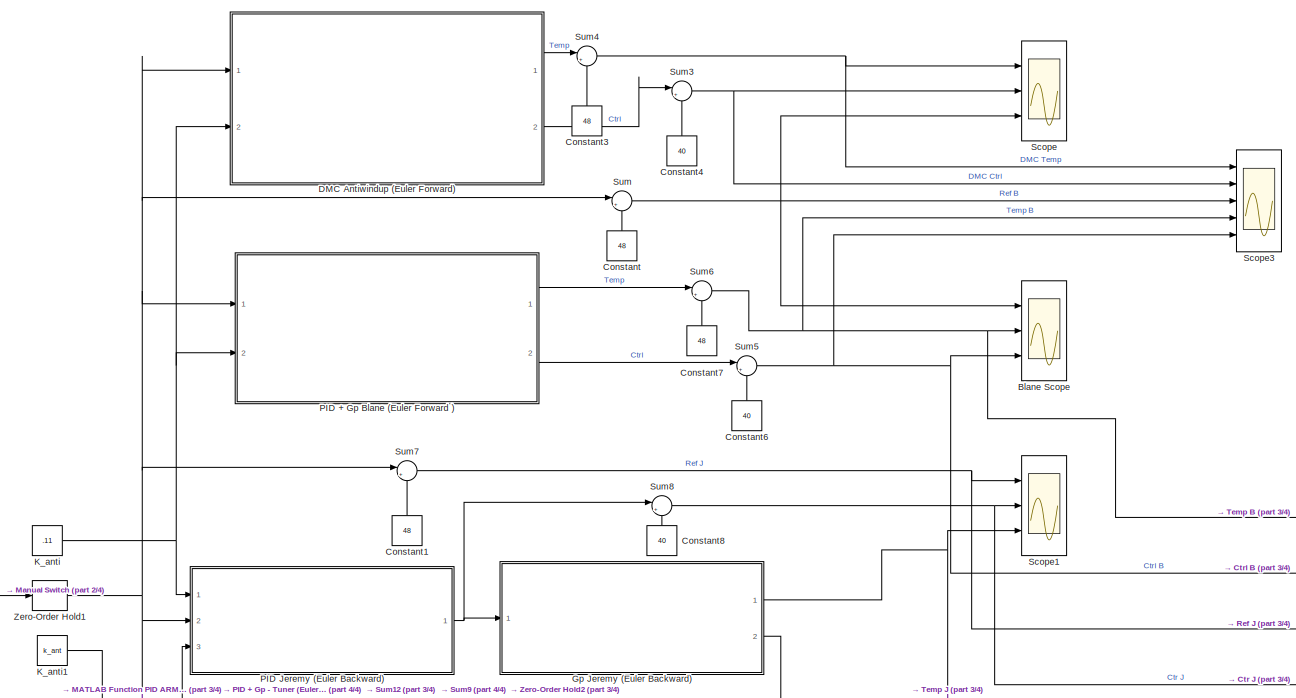
[diagram: root canvas - part 1/4, top center region]
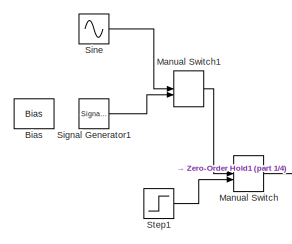
[diagram: root canvas - part 2/4, middle left region]
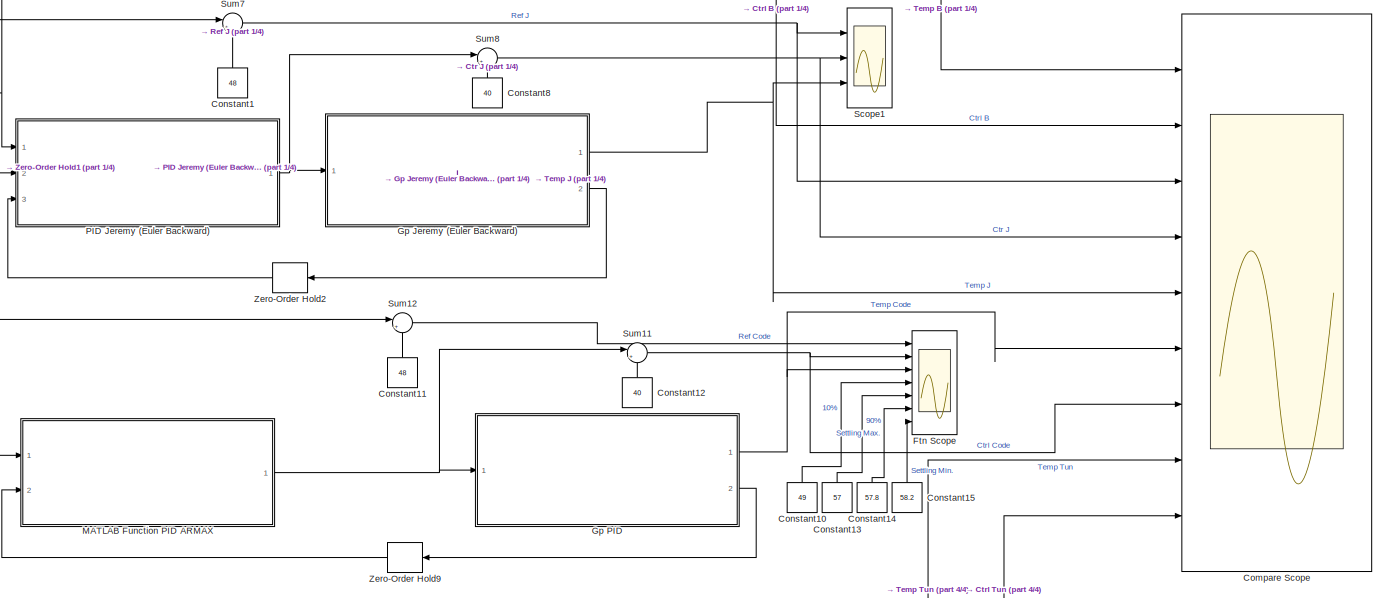
[diagram: root canvas - part 3/4, full width, middle band]
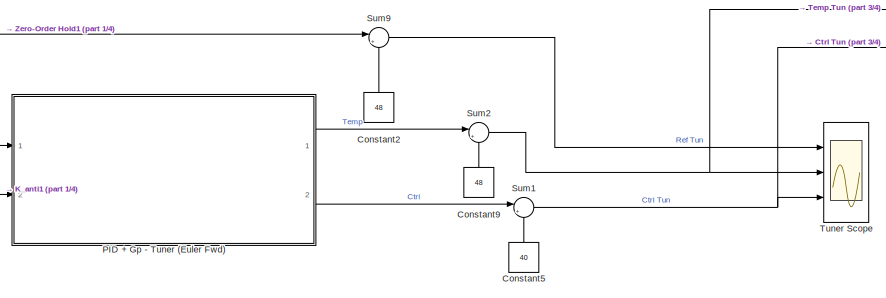
[diagram: root canvas - part 4/4, bottom center region]
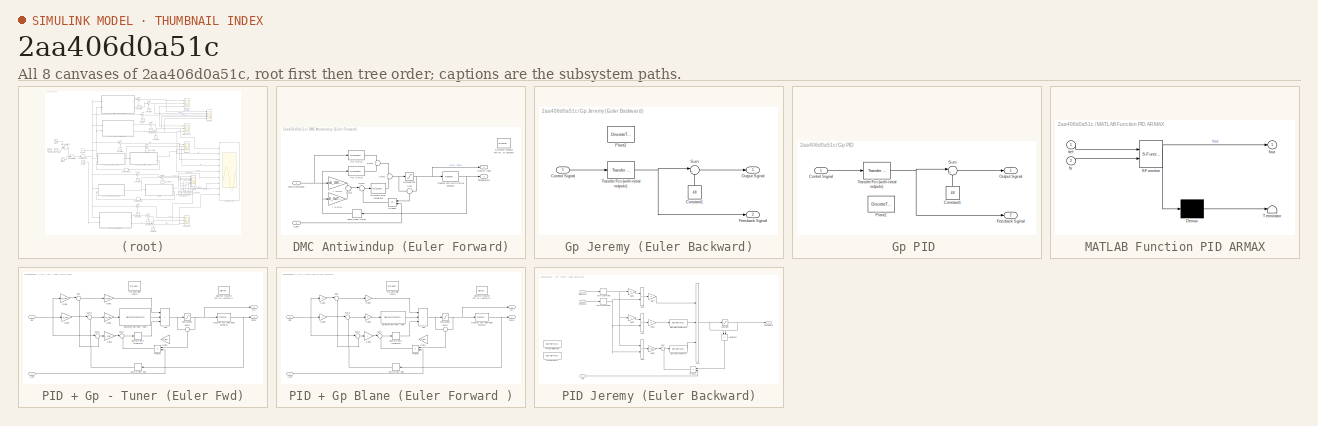
[diagram: thumbnail index - all 8 canvases of the model, root first then tree order]
MODEL slx_2aa406d0a51c
KIND model
CONFIG AbsTol = auto
CONFIG EnableMultiTasking = off
CONFIG FixedStep = auto
CONFIG MaxStep = auto
CONFIG MinStep = auto
CONFIG RelTol = 1e-3
CONFIG SampleTimeConstraint = Unconstrained
CONFIG SolverName = VariableStepAuto
CONFIG StartTime = 0.0
CONFIG StopTime = 3600
BLOCK [Bias] Bias
  Bias = 48
  Commented = on
  SaturateOnIntegerOverflow = off
BLOCK [Scope] Blane Scope
  Floating = off
  NumInputPorts = 3
  Ports = [3]
  ScopeSpecificationString = Simulink.scopes.TimeScopeBlockCfg('CurrentConfiguration', extmgr.ConfigurationSet(extmgr.Configuration('Core','General UI',true),extmgr.Configuration('Core','Source UI',true),extmgr.Configuration('Sources','WiredSimulink',true,'DataLoggingVariableName','ScopeData1'),extmgr.Configuration('Visuals','Time Domain',true,'SerializedDisplays',{struct('MinYLimReal','-12.5','MaxYLimReal','112.5','YLabelRea...<+1437ch>
BLOCK [Scope] Compare Scope
  Floating = off
  NumInputPorts = 9
  Ports = [9]
  ScopeSpecificationString = Simulink.scopes.TimeScopeBlockCfg('CurrentConfiguration', extmgr.ConfigurationSet(extmgr.Configuration('Core','General UI',true),extmgr.Configuration('Core','Source UI',true),extmgr.Configuration('Sources','WiredSimulink',true,'DataLoggingVariableName','ScopeData2'),extmgr.Configuration('Visuals','Time Domain',true,'SerializedDisplays',{struct('MinYLimReal','-12.5','MaxYLimReal','112.5','YLabelRea...<+1736ch>
BLOCK [Constant] Constant
  NameLocation = right
  Value = 48
BLOCK [Constant] Constant1
  NameLocation = right
  Value = 48
BLOCK [Constant] Constant10
  NameLocation = right
  Value = 49
BLOCK [Constant] Constant11
  NameLocation = right
  Value = 48
BLOCK [Constant] Constant12
  NameLocation = right
  Value = 40
BLOCK [Constant] Constant13
  NameLocation = right
  Value = 57
BLOCK [Constant] Constant14
  NameLocation = right
  Value = 57.8
BLOCK [Constant] Constant15
  NameLocation = right
  Value = 58.2
BLOCK [Constant] Constant2
  NameLocation = right
  Value = 48
BLOCK [Constant] Constant3
  NameLocation = right
  Value = 48
BLOCK [Constant] Constant4
  NameLocation = right
  Value = 40
BLOCK [Constant] Constant5
  NameLocation = right
  Value = 40
BLOCK [Constant] Constant6
  NameLocation = right
  Value = 40
BLOCK [Constant] Constant7
  NameLocation = right
  Value = 48
BLOCK [Constant] Constant8
  NameLocation = right
  Value = 40
BLOCK [Constant] Constant9
  NameLocation = right
  Value = 48
BLOCK [SubSystem] DMC Antiwindup (Euler Forward)
  Commented = on
  Ports = [2, 2]
  RequestExecContextInheritance = off
BLOCK [Outport] DMC Antiwindup (Euler Forward)/Control Input 
  Port = 2
BLOCK [Reference] DMC Antiwindup (Euler Forward)/Discrete Transfer Fcn (with initial outputs)  REF=simulink_extras/Additional
Discrete/Discrete
Transfer Fcn
(with initial outputs)
  Ports = [1, 1]
  SourceBlock = simulink_extras/Additional\nDiscrete/Discrete\nTransfer Fcn\n(with initial outputs)
  SourceProductBaseCode = SL
  SourceType = Discrete Transfer Function with Initial Outputs
BLOCK [DiscreteIntegrator] DMC Antiwindup (Euler Forward)/Discrete-Time Integrator
  ICPrevOutput = DiscIntNeverNeededParam
  ICPrevScaledInput = DiscIntNeverNeededParam
  InitialConditionSetting = Auto
  Ports = [1, 1]
  SampleTime = Ts3
BLOCK [Gain] DMC Antiwindup (Euler Forward)/I S//R(z)
  Gain = c0_Gc/Ts3
BLOCK [Gain] DMC Antiwindup (Euler Forward)/I T//R(z)
  Gain = c0_Gff/Ts3
BLOCK [DiscreteTransferFcn] DMC Antiwindup (Euler Forward)/PD S//R(z)
  Denominator = PD_den
  InputPortMap = u0
  Numerator = PD_SR_num
  Ports = [1, 1]
  SampleTime = Ts3
BLOCK [DiscreteTransferFcn] DMC Antiwindup (Euler Forward)/PD T//R(z)
  Denominator = PD_den
  InputPortMap = u0
  Numerator = PD_TR_num
  Ports = [1, 1]
  SampleTime = Ts3
BLOCK [Product] DMC Antiwindup (Euler Forward)/Product
  Ports = [2, 1]
BLOCK [Saturate] DMC Antiwindup (Euler Forward)/Saturation1
  LowerLimit = -40
  UpperLimit = 60
BLOCK [Sum] DMC Antiwindup (Euler Forward)/Sum
  Inputs = -+
  NameLocation = left
  Ports = [2, 1]
BLOCK [Sum] DMC Antiwindup (Euler Forward)/Sum1
  Ports = [2, 1]
BLOCK [Sum] DMC Antiwindup (Euler Forward)/Sum2
  Inputs = |++
  Ports = [2, 1]
BLOCK [Sum] DMC Antiwindup (Euler Forward)/Sum3
  Inputs = +-
  Ports = [2, 1]
BLOCK [Sum] DMC Antiwindup (Euler Forward)/Sum4
  Inputs = +-
  Ports = [2, 1]
BLOCK [Inport] DMC Antiwindup (Euler Forward)/Temp Reference
BLOCK [Outport] DMC Antiwindup (Euler Forward)/Temperature 
BLOCK [Reference] DMC Antiwindup (Euler Forward)/Transfer Fcn (with initial outputs)  REF=simulink_extras/Additional
Linear/Transfer Fcn
(with initial outputs)
  Ports = [1, 1]
  SourceBlock = simulink_extras/Additional\nLinear/Transfer Fcn\n(with initial outputs)
  SourceProductBaseCode = SL
  SourceType = Transfer Function with Initial Outputs
BLOCK [ZeroOrderHold] DMC Antiwindup (Euler Forward)/Zero-Order Hold1
  SampleTime = Ts3
BLOCK [Inport] DMC Antiwindup (Euler Forward)/k_anti
  Port = 2
BLOCK [Scope] Ftn Scope
  Floating = off
  NumInputPorts = 7
  Ports = [7]
  ScopeSpecificationString = Simulink.scopes.TimeScopeBlockCfg('CurrentConfiguration', extmgr.ConfigurationSet(extmgr.Configuration('Core','General UI',true),extmgr.Configuration('Core','Source UI',true),extmgr.Configuration('Sources','WiredSimulink',true,'DataLoggingVariableName','ScopeData3'),extmgr.Configuration('Visuals','Time Domain',true,'SerializedDisplays',{struct('MinYLimReal','-12.5','MaxYLimReal','112.5','YLabelRea...<+1725ch>
BLOCK [SubSystem] Gp Jeremy (Euler Backward)
  Commented = on
  Ports = [1, 2]
  RequestExecContextInheritance = off
BLOCK [Constant] Gp Jeremy (Euler Backward)/Constant1
  NameLocation = right
  Value = 48
BLOCK [Inport] Gp Jeremy (Euler Backward)/Control Signal
  NameLocation = left
BLOCK [Outport] Gp Jeremy (Euler Backward)/Feecback Sginal
  NameLocation = right
  Port = 2
BLOCK [Outport] Gp Jeremy (Euler Backward)/Output Sginal
  NameLocation = right
BLOCK [DiscreteTransferFcn] Gp Jeremy (Euler Backward)/Plant2
  Commented = on
  Denominator = A
  InputPortMap = u0
  Numerator = B
  Ports = [1, 1]
  SampleTime = 0.4
BLOCK [Sum] Gp Jeremy (Euler Backward)/Sum
  Inputs = |++
  Ports = [2, 1]
BLOCK [Reference] Gp Jeremy (Euler Backward)/Transfer Fcn (with initial outputs)  REF=simulink_extras/Additional
Linear/Transfer Fcn
(with initial outputs)
  Ports = [1, 1]
  SourceBlock = simulink_extras/Additional\nLinear/Transfer Fcn\n(with initial outputs)
  SourceProductBaseCode = SL
  SourceType = Transfer Function with Initial Outputs
BLOCK [SubSystem] Gp PID 
  Ports = [1, 2]
  RequestExecContextInheritance = off
BLOCK [Constant] Gp PID /Constant1
  NameLocation = right
  Value = 48
BLOCK [Inport] Gp PID /Control Signal
  NameLocation = left
BLOCK [Outport] Gp PID /Feecback Sginal
  NameLocation = right
  Port = 2
BLOCK [Outport] Gp PID /Output Sginal
  NameLocation = right
BLOCK [DiscreteTransferFcn] Gp PID /Plant2
  Commented = on
  Denominator = A
  InputPortMap = u0
  Numerator = B
  Ports = [1, 1]
  SampleTime = 0.4
BLOCK [Sum] Gp PID /Sum
  Inputs = |++
  Ports = [2, 1]
BLOCK [Reference] Gp PID /Transfer Fcn (with initial outputs)  REF=simulink_extras/Additional
Linear/Transfer Fcn
(with initial outputs)
  Ports = [1, 1]
  SourceBlock = simulink_extras/Additional\nLinear/Transfer Fcn\n(with initial outputs)
  SourceProductBaseCode = SL
  SourceType = Transfer Function with Initial Outputs
BLOCK [Constant] K_anti
  Value = .11
BLOCK [Constant] K_anti1
  Value = k_ant
  VectorParams1D = off
BLOCK [SubSystem] MATLAB Function PID ARMAX
  ErrorFcn = Stateflow.Translate.translate
  PermitHierarchicalResolution = ExplicitOnly
  Ports = [2, 1]
  RequestExecContextInheritance = off
  SFBlockType = MATLAB Function
  TreatAsAtomicUnit = on
BLOCK [Demux] MATLAB Function PID ARMAX/ Demux 
  Outputs = 1
  Ports = [1, 1]
BLOCK [S-Function] MATLAB Function PID ARMAX/ SFunction 
  EnableBusSupport = on
  FunctionName = sf_sfun
  PortCounts = [2 2]
  Ports = [2, 2]
  SFcnIsStateOwnerBlock = off
  SFunctionDeploymentMode = off
  Tag = Stateflow S-Function 3
BLOCK [Terminator] MATLAB Function PID ARMAX/ Terminator 
BLOCK [Outport] MATLAB Function PID ARMAX/fout
BLOCK [Inport] MATLAB Function PID ARMAX/fref
BLOCK [Inport] MATLAB Function PID ARMAX/fy
  Port = 2
BLOCK [ManualSwitch] Manual Switch
  CurrentSetting = 0
BLOCK [ManualSwitch] Manual Switch1
  CurrentSetting = 0
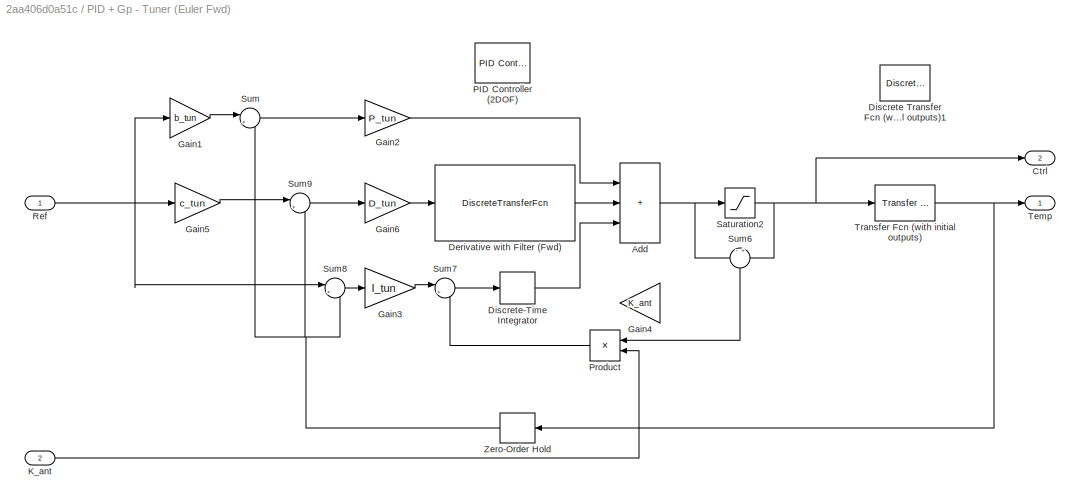
BLOCK [SubSystem] PID + Gp - Tuner (Euler Fwd)
  Ports = [2, 2]
  RequestExecContextInheritance = off
BLOCK [Sum] PID + Gp - Tuner (Euler Fwd)/Add
  IconShape = rectangular
  Inputs = +++
  Ports = [3, 1]
BLOCK [Outport] PID + Gp - Tuner (Euler Fwd)/Ctrl
  Port = 2
BLOCK [DiscreteTransferFcn] PID + Gp - Tuner (Euler Fwd)/Derivative with Filter (Fwd)
  Denominator = [1, (N_tun*Ts3 - 1)]
  InputPortMap = u0
  Numerator = [N_tun , -N_tun]
  Ports = [1, 1]
  SampleTime = Ts3
BLOCK [Reference] PID + Gp - Tuner (Euler Fwd)/Discrete Transfer Fcn (with initial outputs)1  REF=simulink_extras/Additional
Discrete/Discrete
Transfer Fcn
(with initial outputs)
  Commented = on
  Ports = [1, 1]
  SourceBlock = simulink_extras/Additional\nDiscrete/Discrete\nTransfer Fcn\n(with initial outputs)
  SourceProductBaseCode = SL
  SourceType = Discrete Transfer Function with Initial Outputs
BLOCK [DiscreteIntegrator] PID + Gp - Tuner (Euler Fwd)/Discrete-Time Integrator
  ICPrevOutput = DiscIntNeverNeededParam
  ICPrevScaledInput = DiscIntNeverNeededParam
  InitialConditionSetting = Auto
  Ports = [1, 1]
  SampleTime = Ts3
BLOCK [Gain] PID + Gp - Tuner (Euler Fwd)/Gain1
  Gain = b_tun
BLOCK [Gain] PID + Gp - Tuner (Euler Fwd)/Gain2
  Gain = P_tun
BLOCK [Gain] PID + Gp - Tuner (Euler Fwd)/Gain3
  Gain = I_tun
BLOCK [Gain] PID + Gp - Tuner (Euler Fwd)/Gain4
  Commented = on
  Gain = K_ant
BLOCK [Gain] PID + Gp - Tuner (Euler Fwd)/Gain5
  Gain = c_tun
BLOCK [Gain] PID + Gp - Tuner (Euler Fwd)/Gain6
  Gain = D_tun
BLOCK [Inport] PID + Gp - Tuner (Euler Fwd)/K_ant
  Port = 2
BLOCK [Reference] PID + Gp - Tuner (Euler Fwd)/PID Controller (2DOF)  REF=pid_lib/PID Controller (2DOF)
  Commented = on
  Ports = [2, 1]
  SourceBlock = pid_lib/PID Controller (2DOF)
  SourceProductBaseCode = SL
  SourceType = PID 2dof
BLOCK [Product] PID + Gp - Tuner (Euler Fwd)/Product
  Ports = [2, 1]
BLOCK [Inport] PID + Gp - Tuner (Euler Fwd)/Ref
BLOCK [Saturate] PID + Gp - Tuner (Euler Fwd)/Saturation2
  LowerLimit = -40
  UpperLimit = 60
BLOCK [Sum] PID + Gp - Tuner (Euler Fwd)/Sum
  Inputs = |+-
  Ports = [2, 1]
BLOCK [Sum] PID + Gp - Tuner (Euler Fwd)/Sum6
  Inputs = -+
  NameLocation = left
  Ports = [2, 1]
BLOCK [Sum] PID + Gp - Tuner (Euler Fwd)/Sum7
  Inputs = |++
  Ports = [2, 1]
BLOCK [Sum] PID + Gp - Tuner (Euler Fwd)/Sum8
  Inputs = |+-
  Ports = [2, 1]
BLOCK [Sum] PID + Gp - Tuner (Euler Fwd)/Sum9
  Inputs = |+-
  Ports = [2, 1]
BLOCK [Outport] PID + Gp - Tuner (Euler Fwd)/Temp
BLOCK [Reference] PID + Gp - Tuner (Euler Fwd)/Transfer Fcn (with initial outputs)  REF=simulink_extras/Additional
Linear/Transfer Fcn
(with initial outputs)
  Ports = [1, 1]
  SourceBlock = simulink_extras/Additional\nLinear/Transfer Fcn\n(with initial outputs)
  SourceProductBaseCode = SL
  SourceType = Transfer Function with Initial Outputs
BLOCK [ZeroOrderHold] PID + Gp - Tuner (Euler Fwd)/Zero-Order Hold
  SampleTime = Ts3
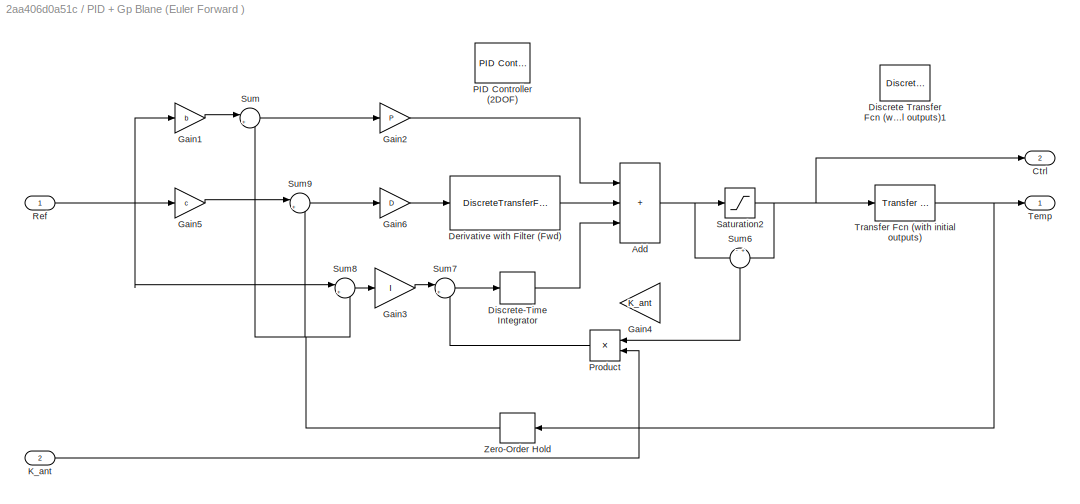
BLOCK [SubSystem] PID + Gp Blane (Euler Forward )
  Ports = [2, 2]
  RequestExecContextInheritance = off
BLOCK [Sum] PID + Gp Blane (Euler Forward )/Add
  IconShape = rectangular
  Inputs = +++
  Ports = [3, 1]
BLOCK [Outport] PID + Gp Blane (Euler Forward )/Ctrl
  Port = 2
BLOCK [DiscreteTransferFcn] PID + Gp Blane (Euler Forward )/Derivative with Filter (Fwd)
  Denominator = [1, (N*Ts3 - 1)]
  InputPortMap = u0
  Numerator = [N , -N]
  Ports = [1, 1]
  SampleTime = Ts3
BLOCK [Reference] PID + Gp Blane (Euler Forward )/Discrete Transfer Fcn (with initial outputs)1  REF=simulink_extras/Additional
Discrete/Discrete
Transfer Fcn
(with initial outputs)
  Commented = on
  Ports = [1, 1]
  SourceBlock = simulink_extras/Additional\nDiscrete/Discrete\nTransfer Fcn\n(with initial outputs)
  SourceProductBaseCode = SL
  SourceType = Discrete Transfer Function with Initial Outputs
BLOCK [DiscreteIntegrator] PID + Gp Blane (Euler Forward )/Discrete-Time Integrator
  ICPrevOutput = DiscIntNeverNeededParam
  ICPrevScaledInput = DiscIntNeverNeededParam
  InitialConditionSetting = Auto
  Ports = [1, 1]
  SampleTime = Ts3
BLOCK [Gain] PID + Gp Blane (Euler Forward )/Gain1
  Gain = b
BLOCK [Gain] PID + Gp Blane (Euler Forward )/Gain2
  Gain = P
BLOCK [Gain] PID + Gp Blane (Euler Forward )/Gain3
  Gain = I
BLOCK [Gain] PID + Gp Blane (Euler Forward )/Gain4
  Commented = on
  Gain = K_ant
BLOCK [Gain] PID + Gp Blane (Euler Forward )/Gain5
  Gain = c
BLOCK [Gain] PID + Gp Blane (Euler Forward )/Gain6
  Gain = D
BLOCK [Inport] PID + Gp Blane (Euler Forward )/K_ant
  Port = 2
BLOCK [Reference] PID + Gp Blane (Euler Forward )/PID Controller (2DOF)  REF=pid_lib/PID Controller (2DOF)
  Commented = on
  Ports = [2, 1]
  SourceBlock = pid_lib/PID Controller (2DOF)
  SourceProductBaseCode = SL
  SourceType = PID 2dof
BLOCK [Product] PID + Gp Blane (Euler Forward )/Product
  Ports = [2, 1]
BLOCK [Inport] PID + Gp Blane (Euler Forward )/Ref
BLOCK [Saturate] PID + Gp Blane (Euler Forward )/Saturation2
  LowerLimit = -40
  UpperLimit = 60
BLOCK [Sum] PID + Gp Blane (Euler Forward )/Sum
  Inputs = |+-
  Ports = [2, 1]
BLOCK [Sum] PID + Gp Blane (Euler Forward )/Sum6
  Inputs = -+
  NameLocation = left
  Ports = [2, 1]
BLOCK [Sum] PID + Gp Blane (Euler Forward )/Sum7
  Inputs = |++
  Ports = [2, 1]
BLOCK [Sum] PID + Gp Blane (Euler Forward )/Sum8
  Inputs = |+-
  Ports = [2, 1]
BLOCK [Sum] PID + Gp Blane (Euler Forward )/Sum9
  Inputs = |+-
  Ports = [2, 1]
BLOCK [Outport] PID + Gp Blane (Euler Forward )/Temp
BLOCK [Reference] PID + Gp Blane (Euler Forward )/Transfer Fcn (with initial outputs)  REF=simulink_extras/Additional
Linear/Transfer Fcn
(with initial outputs)
  Ports = [1, 1]
  SourceBlock = simulink_extras/Additional\nLinear/Transfer Fcn\n(with initial outputs)
  SourceProductBaseCode = SL
  SourceType = Transfer Function with Initial Outputs
BLOCK [ZeroOrderHold] PID + Gp Blane (Euler Forward )/Zero-Order Hold
  SampleTime = Ts3
BLOCK [SubSystem] PID Jeremy (Euler Backward)
  Commented = on
  Ports = [3, 1]
  RequestExecContextInheritance = off
BLOCK [Sum] PID Jeremy (Euler Backward)/Add1
  IconShape = rectangular
  Inputs = +-
  Ports = [2, 1]
BLOCK [Sum] PID Jeremy (Euler Backward)/Add2
  IconShape = rectangular
  Inputs = +-
  Ports = [2, 1]
BLOCK [Sum] PID Jeremy (Euler Backward)/Add3
  IconShape = rectangular
  Inputs = +++
  Ports = [3, 1]
BLOCK [Sum] PID Jeremy (Euler Backward)/Add4
  IconShape = rectangular
  Inputs = +-
  Ports = [2, 1]
BLOCK [Inport] PID Jeremy (Euler Backward)/Anti
  NameLocation = left
BLOCK [Sum] PID Jeremy (Euler Backward)/Anti-windup
  IconShape = rectangular
  Inputs = -+
  NameLocation = right
  Ports = [2, 1]
BLOCK [Outport] PID Jeremy (Euler Backward)/Control Signal
  NameLocation = right
BLOCK [DiscreteTransferFcn] PID Jeremy (Euler Backward)/Discrete Transfer Fcn
  Denominator = [1 -1]
  InputPortMap = u0
  Numerator = [1 0]
  Ports = [1, 1]
  SampleTime = Ts2
BLOCK [DiscreteTransferFcn] PID Jeremy (Euler Backward)/Discrete Transfer Fcn1
  Denominator = [1+N -1]
  InputPortMap = u0
  Numerator = [N -N]
  Ports = [1, 1]
  SampleTime = Ts2
BLOCK [Inport] PID Jeremy (Euler Backward)/Feedback
  NameLocation = left
  Port = 3
BLOCK [DiscreteTransferFcn] PID Jeremy (Euler Backward)/Forward D + LP
  Denominator = [1 N*Ts-1]
  InputPortMap = u0
  Numerator = [N -N]
  Ports = [1, 1]
  SampleTime = Ts
BLOCK [DiscreteTransferFcn] PID Jeremy (Euler Backward)/Forward Integrator
  Denominator = [1 -1]
  InputPortMap = u0
  Ports = [1, 1]
  SampleTime = Ts
BLOCK [Gain] PID Jeremy (Euler Backward)/Gain1
  Gain = b
BLOCK [Gain] PID Jeremy (Euler Backward)/Gain2
  Gain = D
BLOCK [Gain] PID Jeremy (Euler Backward)/Gain3
  Gain = c
BLOCK [Gain] PID Jeremy (Euler Backward)/Gain6
  Gain = I*Ts3
BLOCK [Gain] PID Jeremy (Euler Backward)/Gain7
  Gain = P
BLOCK [Product] PID Jeremy (Euler Backward)/Product
  Ports = [2, 1]
BLOCK [Inport] PID Jeremy (Euler Backward)/Reference
  NameLocation = left
  Port = 2
BLOCK [Saturate] PID Jeremy (Euler Backward)/Saturation
  LowerLimit = -40
  UpperLimit = 60
BLOCK [Sum] PID Jeremy (Euler Backward)/Sum
  Inputs = |++
  Ports = [2, 1]
BLOCK [ZeroOrderHold] PID Jeremy (Euler Backward)/Zero-Order Hold
  SampleTime = Ts3
BLOCK [ZeroOrderHold] PID Jeremy (Euler Backward)/Zero-Order Hold1
  SampleTime = Ts3
BLOCK [Scope] Scope
  Floating = off
  NumInputPorts = 3
  Ports = [3]
  ScopeSpecificationString = Simulink.scopes.TimeScopeBlockCfg('CurrentConfiguration', extmgr.ConfigurationSet(extmgr.Configuration('Core','General UI',true),extmgr.Configuration('Core','Source UI',true),extmgr.Configuration('Sources','WiredSimulink',true,'DataLoggingVariableName','ScopeData4'),extmgr.Configuration('Visuals','Time Domain',true,'SerializedDisplays',{struct('MinYLimReal','-36.125','MaxYLimReal','115.125','YLabe...<+1457ch>
BLOCK [Scope] Scope1
  Floating = off
  NumInputPorts = 3
  Ports = [3]
  ScopeSpecificationString = Simulink.scopes.TimeScopeBlockCfg('CurrentConfiguration', extmgr.ConfigurationSet(extmgr.Configuration('Core','General UI',true),extmgr.Configuration('Core','Source UI',true),extmgr.Configuration('Sources','WiredSimulink',true,'DataLoggingVariableName','ScopeData5'),extmgr.Configuration('Visuals','Time Domain',true,'SerializedDisplays',{struct('MinYLimReal','-12.5','MaxYLimReal','112.5','YLabelRea...<+1438ch>
BLOCK [Scope] Scope3
  Floating = off
  NumInputPorts = 5
  Ports = [5]
  ScopeSpecificationString = Simulink.scopes.TimeScopeBlockCfg('CurrentConfiguration', extmgr.ConfigurationSet(extmgr.Configuration('Core','General UI',true),extmgr.Configuration('Core','Source UI',true),extmgr.Configuration('Sources','WiredSimulink',true,'DataLoggingVariableName','ScopeData6'),extmgr.Configuration('Visuals','Time Domain',true,'SerializedDisplays',{struct('MinYLimReal','43.11816','MaxYLimReal','91.93656','YLa...<+1595ch>
BLOCK [SignalGenerator] Signal Generator1
  Amplitude = 20
  Frequency = 1/1800
  Ports = [0, 1]
  WaveForm = square
BLOCK [Sin] Sine
  Amplitude = 10
  Frequency = 1/1200*6.28
  Ports = [0, 1]
  SampleTime = 0
BLOCK [Step] Step1
  After = 10
  SampleTime = Ts
  Time = 0
BLOCK [Sum] Sum
  Inputs = |++
  Ports = [2, 1]
BLOCK [Sum] Sum1
  Inputs = |++
  Ports = [2, 1]
BLOCK [Sum] Sum11
  Inputs = |++
  Ports = [2, 1]
BLOCK [Sum] Sum12
  Inputs = |++
  Ports = [2, 1]
BLOCK [Sum] Sum2
  Inputs = |++
  Ports = [2, 1]
BLOCK [Sum] Sum3
  Inputs = |++
  Ports = [2, 1]
BLOCK [Sum] Sum4
  Inputs = |++
  Ports = [2, 1]
BLOCK [Sum] Sum5
  Inputs = |++
  Ports = [2, 1]
BLOCK [Sum] Sum6
  Inputs = |++
  Ports = [2, 1]
BLOCK [Sum] Sum7
  Inputs = |++
  Ports = [2, 1]
BLOCK [Sum] Sum8
  Inputs = |++
  Ports = [2, 1]
BLOCK [Sum] Sum9
  Inputs = |++
  Ports = [2, 1]
BLOCK [Scope] Tuner Scope
  Floating = off
  NumInputPorts = 3
  Ports = [3]
  ScopeSpecificationString = Simulink.scopes.TimeScopeBlockCfg('CurrentConfiguration', extmgr.ConfigurationSet(extmgr.Configuration('Core','General UI',true),extmgr.Configuration('Core','Source UI',true),extmgr.Configuration('Sources','WiredSimulink',true),extmgr.Configuration('Visuals','Time Domain',true,'SerializedDisplays',{struct('MinYLimReal','-12.5','MaxYLimReal','112.5','YLabelReal','','MinYLimMag','0.00000','MaxYLimMa...<+1404ch>
BLOCK [ZeroOrderHold] Zero-Order Hold1
  SampleTime = Ts3
BLOCK [ZeroOrderHold] Zero-Order Hold2
  SampleTime = Ts3
BLOCK [ZeroOrderHold] Zero-Order Hold9
  SampleTime = Ts3
LINE Constant10:1 -> Ftn Scope:4
LINE Constant11:1 -> Sum12:2
LINE Constant12:1 -> Sum11:2
LINE Constant13:1 -> Ftn Scope:5
LINE Constant14:1 -> Ftn Scope:6
LINE Constant15:1 -> Ftn Scope:7
LINE Constant1:1 -> Sum7:2
LINE Constant2:1 -> Sum9:2
LINE Constant3:1 -> Sum4:2
LINE Constant4:1 -> Sum3:2
LINE Constant5:1 -> Sum1:2
LINE Constant6:1 -> Sum5:2
LINE Constant7:1 -> Sum6:2
LINE Constant8:1 -> Sum8:2
LINE Constant9:1 -> Sum2:2
LINE Constant:1 -> Sum:2
LINE DMC Antiwindup (Euler Forward)/Discrete-Time Integrator:1 -> DMC Antiwindup (Euler Forward)/Sum1:2
LINE DMC Antiwindup (Euler Forward)/I S//R(z):1 -> DMC Antiwindup (Euler Forward)/Sum3:2
LINE DMC Antiwindup (Euler Forward)/I T//R(z):1 -> DMC Antiwindup (Euler Forward)/Sum3:1
LINE DMC Antiwindup (Euler Forward)/PD S//R(z):1 -> DMC Antiwindup (Euler Forward)/Sum4:2
LINE DMC Antiwindup (Euler Forward)/PD T//R(z):1 -> DMC Antiwindup (Euler Forward)/Sum4:1
LINE DMC Antiwindup (Euler Forward)/Product:1 -> DMC Antiwindup (Euler Forward)/Sum2:2
NET DMC Antiwindup (Euler Forward)/Saturation1:1 -> DMC Antiwindup (Euler Forward)/Control Input :1, DMC Antiwindup (Euler Forward)/Sum:2, DMC Antiwindup (Euler Forward)/Transfer Fcn (with initial outputs):1
NET DMC Antiwindup (Euler Forward)/Sum1:1 -> DMC Antiwindup (Euler Forward)/Saturation1:1, DMC Antiwindup (Euler Forward)/Sum:1
LINE DMC Antiwindup (Euler Forward)/Sum2:1 -> DMC Antiwindup (Euler Forward)/Discrete-Time Integrator:1
LINE DMC Antiwindup (Euler Forward)/Sum3:1 -> DMC Antiwindup (Euler Forward)/Sum2:1
LINE DMC Antiwindup (Euler Forward)/Sum4:1 -> DMC Antiwindup (Euler Forward)/Sum1:1
LINE DMC Antiwindup (Euler Forward)/Sum:1 -> DMC Antiwindup (Euler Forward)/Product:1
NET DMC Antiwindup (Euler Forward)/Temp Reference:1 -> DMC Antiwindup (Euler Forward)/I T//R(z):1, DMC Antiwindup (Euler Forward)/PD T//R(z):1
NET DMC Antiwindup (Euler Forward)/Transfer Fcn (with initial outputs):1 -> DMC Antiwindup (Euler Forward)/Temperature :1, DMC Antiwindup (Euler Forward)/Zero-Order Hold1:1
NET DMC Antiwindup (Euler Forward)/Zero-Order Hold1:1 -> DMC Antiwindup (Euler Forward)/I S//R(z):1, DMC Antiwindup (Euler Forward)/PD S//R(z):1
LINE DMC Antiwindup (Euler Forward)/k_anti:1 -> DMC Antiwindup (Euler Forward)/Product:2
LINE DMC Antiwindup (Euler Forward):1 -> Sum4:1
LINE DMC Antiwindup (Euler Forward):2 -> Sum3:1
LINE Gp Jeremy (Euler Backward)/Constant1:1 -> Gp Jeremy (Euler Backward)/Sum:2
LINE Gp Jeremy (Euler Backward)/Control Signal:1 -> Gp Jeremy (Euler Backward)/Transfer Fcn (with initial outputs):1
LINE Gp Jeremy (Euler Backward)/Sum:1 -> Gp Jeremy (Euler Backward)/Output Sginal:1
NET Gp Jeremy (Euler Backward)/Transfer Fcn (with initial outputs):1 -> Gp Jeremy (Euler Backward)/Feecback Sginal:1, Gp Jeremy (Euler Backward)/Sum:1
NET Gp Jeremy (Euler Backward):1 -> Compare Scope:5, Scope1:3
LINE Gp Jeremy (Euler Backward):2 -> Zero-Order Hold2:1
LINE Gp PID /Constant1:1 -> Gp PID /Sum:2
LINE Gp PID /Control Signal:1 -> Gp PID /Transfer Fcn (with initial outputs):1
LINE Gp PID /Sum:1 -> Gp PID /Output Sginal:1
NET Gp PID /Transfer Fcn (with initial outputs):1 -> Gp PID /Feecback Sginal:1, Gp PID /Sum:1
NET Gp PID :1 -> Compare Scope:6, Ftn Scope:3
LINE Gp PID :2 -> Zero-Order Hold9:1
LINE K_anti1:1 -> PID + Gp - Tuner (Euler Fwd):2
NET K_anti:1 -> DMC Antiwindup (Euler Forward):2, PID + Gp Blane (Euler Forward ):2, PID Jeremy (Euler Backward):1
NET MATLAB Function PID ARMAX:1 -> Gp PID :1, Sum11:1
LINE Manual Switch1:1 -> Manual Switch:1
LINE Manual Switch:1 -> Zero-Order Hold1:1
NET PID + Gp - Tuner (Euler Fwd)/Add:1 -> PID + Gp - Tuner (Euler Fwd)/Saturation2:1, PID + Gp - Tuner (Euler Fwd)/Sum6:1
LINE PID + Gp - Tuner (Euler Fwd)/Derivative with Filter (Fwd):1 -> PID + Gp - Tuner (Euler Fwd)/Add:2
LINE PID + Gp - Tuner (Euler Fwd)/Discrete-Time Integrator:1 -> PID + Gp - Tuner (Euler Fwd)/Add:3
LINE PID + Gp - Tuner (Euler Fwd)/Gain1:1 -> PID + Gp - Tuner (Euler Fwd)/Sum:1
LINE PID + Gp - Tuner (Euler Fwd)/Gain2:1 -> PID + Gp - Tuner (Euler Fwd)/Add:1
LINE PID + Gp - Tuner (Euler Fwd)/Gain3:1 -> PID + Gp - Tuner (Euler Fwd)/Sum7:1
LINE PID + Gp - Tuner (Euler Fwd)/Gain5:1 -> PID + Gp - Tuner (Euler Fwd)/Sum9:1
LINE PID + Gp - Tuner (Euler Fwd)/Gain6:1 -> PID + Gp - Tuner (Euler Fwd)/Derivative with Filter (Fwd):1
LINE PID + Gp - Tuner (Euler Fwd)/K_ant:1 -> PID + Gp - Tuner (Euler Fwd)/Product:2
LINE PID + Gp - Tuner (Euler Fwd)/Product:1 -> PID + Gp - Tuner (Euler Fwd)/Sum7:2
NET PID + Gp - Tuner (Euler Fwd)/Ref:1 -> PID + Gp - Tuner (Euler Fwd)/Gain1:1, PID + Gp - Tuner (Euler Fwd)/Gain5:1, PID + Gp - Tuner (Euler Fwd)/Sum8:1
NET PID + Gp - Tuner (Euler Fwd)/Saturation2:1 -> PID + Gp - Tuner (Euler Fwd)/Ctrl:1, PID + Gp - Tuner (Euler Fwd)/Sum6:2, PID + Gp - Tuner (Euler Fwd)/Transfer Fcn (with initial outputs):1
LINE PID + Gp - Tuner (Euler Fwd)/Sum6:1 -> PID + Gp - Tuner (Euler Fwd)/Product:1
LINE PID + Gp - Tuner (Euler Fwd)/Sum7:1 -> PID + Gp - Tuner (Euler Fwd)/Discrete-Time Integrator:1
LINE PID + Gp - Tuner (Euler Fwd)/Sum8:1 -> PID + Gp - Tuner (Euler Fwd)/Gain3:1
LINE PID + Gp - Tuner (Euler Fwd)/Sum9:1 -> PID + Gp - Tuner (Euler Fwd)/Gain6:1
LINE PID + Gp - Tuner (Euler Fwd)/Sum:1 -> PID + Gp - Tuner (Euler Fwd)/Gain2:1
NET PID + Gp - Tuner (Euler Fwd)/Transfer Fcn (with initial outputs):1 -> PID + Gp - Tuner (Euler Fwd)/Temp:1, PID + Gp - Tuner (Euler Fwd)/Zero-Order Hold:1
NET PID + Gp - Tuner (Euler Fwd)/Zero-Order Hold:1 -> PID + Gp - Tuner (Euler Fwd)/Sum8:2, PID + Gp - Tuner (Euler Fwd)/Sum9:2, PID + Gp - Tuner (Euler Fwd)/Sum:2
LINE PID + Gp - Tuner (Euler Fwd):1 -> Sum2:1
LINE PID + Gp - Tuner (Euler Fwd):2 -> Sum1:1
NET PID + Gp Blane (Euler Forward )/Add:1 -> PID + Gp Blane (Euler Forward )/Saturation2:1, PID + Gp Blane (Euler Forward )/Sum6:1
LINE PID + Gp Blane (Euler Forward )/Derivative with Filter (Fwd):1 -> PID + Gp Blane (Euler Forward )/Add:2
LINE PID + Gp Blane (Euler Forward )/Discrete-Time Integrator:1 -> PID + Gp Blane (Euler Forward )/Add:3
LINE PID + Gp Blane (Euler Forward )/Gain1:1 -> PID + Gp Blane (Euler Forward )/Sum:1
LINE PID + Gp Blane (Euler Forward )/Gain2:1 -> PID + Gp Blane (Euler Forward )/Add:1
LINE PID + Gp Blane (Euler Forward )/Gain3:1 -> PID + Gp Blane (Euler Forward )/Sum7:1
LINE PID + Gp Blane (Euler Forward )/Gain5:1 -> PID + Gp Blane (Euler Forward )/Sum9:1
LINE PID + Gp Blane (Euler Forward )/Gain6:1 -> PID + Gp Blane (Euler Forward )/Derivative with Filter (Fwd):1
LINE PID + Gp Blane (Euler Forward )/K_ant:1 -> PID + Gp Blane (Euler Forward )/Product:2
LINE PID + Gp Blane (Euler Forward )/Product:1 -> PID + Gp Blane (Euler Forward )/Sum7:2
NET PID + Gp Blane (Euler Forward )/Ref:1 -> PID + Gp Blane (Euler Forward )/Gain1:1, PID + Gp Blane (Euler Forward )/Gain5:1, PID + Gp Blane (Euler Forward )/Sum8:1
NET PID + Gp Blane (Euler Forward )/Saturation2:1 -> PID + Gp Blane (Euler Forward )/Ctrl:1, PID + Gp Blane (Euler Forward )/Sum6:2, PID + Gp Blane (Euler Forward )/Transfer Fcn (with initial outputs):1
LINE PID + Gp Blane (Euler Forward )/Sum6:1 -> PID + Gp Blane (Euler Forward )/Product:1
LINE PID + Gp Blane (Euler Forward )/Sum7:1 -> PID + Gp Blane (Euler Forward )/Discrete-Time Integrator:1
LINE PID + Gp Blane (Euler Forward )/Sum8:1 -> PID + Gp Blane (Euler Forward )/Gain3:1
LINE PID + Gp Blane (Euler Forward )/Sum9:1 -> PID + Gp Blane (Euler Forward )/Gain6:1
LINE PID + Gp Blane (Euler Forward )/Sum:1 -> PID + Gp Blane (Euler Forward )/Gain2:1
NET PID + Gp Blane (Euler Forward )/Transfer Fcn (with initial outputs):1 -> PID + Gp Blane (Euler Forward )/Temp:1, PID + Gp Blane (Euler Forward )/Zero-Order Hold:1
NET PID + Gp Blane (Euler Forward )/Zero-Order Hold:1 -> PID + Gp Blane (Euler Forward )/Sum8:2, PID + Gp Blane (Euler Forward )/Sum9:2, PID + Gp Blane (Euler Forward )/Sum:2
LINE PID + Gp Blane (Euler Forward ):1 -> Sum6:1
LINE PID + Gp Blane (Euler Forward ):2 -> Sum5:1
LINE PID Jeremy (Euler Backward)/Add1:1 -> PID Jeremy (Euler Backward)/Gain7:1
LINE PID Jeremy (Euler Backward)/Add2:1 -> PID Jeremy (Euler Backward)/Gain6:1
NET PID Jeremy (Euler Backward)/Add3:1 -> PID Jeremy (Euler Backward)/Anti-windup:1, PID Jeremy (Euler Backward)/Saturation:1
LINE PID Jeremy (Euler Backward)/Add4:1 -> PID Jeremy (Euler Backward)/Gain2:1
LINE PID Jeremy (Euler Backward)/Anti-windup:1 -> PID Jeremy (Euler Backward)/Product:1
LINE PID Jeremy (Euler Backward)/Anti:1 -> PID Jeremy (Euler Backward)/Product:2
LINE PID Jeremy (Euler Backward)/Discrete Transfer Fcn1:1 -> PID Jeremy (Euler Backward)/Add3:2
LINE PID Jeremy (Euler Backward)/Discrete Transfer Fcn:1 -> PID Jeremy (Euler Backward)/Add3:3
LINE PID Jeremy (Euler Backward)/Feedback:1 -> PID Jeremy (Euler Backward)/Zero-Order Hold1:1
LINE PID Jeremy (Euler Backward)/Gain1:1 -> PID Jeremy (Euler Backward)/Add1:1
LINE PID Jeremy (Euler Backward)/Gain2:1 -> PID Jeremy (Euler Backward)/Discrete Transfer Fcn1:1
LINE PID Jeremy (Euler Backward)/Gain3:1 -> PID Jeremy (Euler Backward)/Add4:1
LINE PID Jeremy (Euler Backward)/Gain6:1 -> PID Jeremy (Euler Backward)/Sum:1
LINE PID Jeremy (Euler Backward)/Gain7:1 -> PID Jeremy (Euler Backward)/Add3:1
LINE PID Jeremy (Euler Backward)/Product:1 -> PID Jeremy (Euler Backward)/Sum:2
LINE PID Jeremy (Euler Backward)/Reference:1 -> PID Jeremy (Euler Backward)/Zero-Order Hold:1
NET PID Jeremy (Euler Backward)/Saturation:1 -> PID Jeremy (Euler Backward)/Anti-windup:2, PID Jeremy (Euler Backward)/Control Signal:1
LINE PID Jeremy (Euler Backward)/Sum:1 -> PID Jeremy (Euler Backward)/Discrete Transfer Fcn:1
NET PID Jeremy (Euler Backward)/Zero-Order Hold1:1 -> PID Jeremy (Euler Backward)/Add1:2, PID Jeremy (Euler Backward)/Add2:2, PID Jeremy (Euler Backward)/Add4:2
NET PID Jeremy (Euler Backward)/Zero-Order Hold:1 -> PID Jeremy (Euler Backward)/Add2:1, PID Jeremy (Euler Backward)/Gain1:1, PID Jeremy (Euler Backward)/Gain3:1
NET PID Jeremy (Euler Backward):1 -> Gp Jeremy (Euler Backward):1, Sum8:1
LINE Signal Generator1:1 -> Manual Switch1:2
LINE Sine:1 -> Manual Switch1:1
LINE Step1:1 -> Manual Switch:2
NET Sum11:1 -> Compare Scope:7, Ftn Scope:2
LINE Sum12:1 -> Ftn Scope:1
NET Sum1:1 -> Compare Scope:9, Tuner Scope:3
NET Sum2:1 -> Compare Scope:8, Tuner Scope:2
NET Sum3:1 -> Scope3:2, Scope:2
NET Sum4:1 -> Scope3:1, Scope:1
NET Sum5:1 -> Blane Scope:3, Compare Scope:2, Scope3:5
NET Sum6:1 -> Blane Scope:2, Compare Scope:1, Scope3:4
NET Sum7:1 -> Compare Scope:3, Scope1:1
NET Sum8:1 -> Compare Scope:4, Scope1:2
LINE Sum9:1 -> Tuner Scope:1
NET Sum:1 -> Blane Scope:1, Scope3:3, Scope:3
NET Zero-Order Hold1:1 -> DMC Antiwindup (Euler Forward):1, MATLAB Function PID ARMAX:1, PID + Gp - Tuner (Euler Fwd):1, PID + Gp Blane (Euler Forward ):1, PID Jeremy (Euler Backward):2, Sum12:1, Sum7:1, Sum9:1, Sum:1
LINE Zero-Order Hold2:1 -> PID Jeremy (Euler Backward):3
LINE Zero-Order Hold9:1 -> MATLAB Function PID ARMAX:2
note: NET lines group one-source signal fan-out (src -> all destinations, sorted); 1:1 wires keep LINE
CHART MATLAB Function PID ARMAX states=1 transitions=1
  STATE_LABEL 'eML_blk_kernel()'
  STATE_LABEL 'SCRIPT:\nfunction fout = fcn(fref, fy)\n%%%%%%%%%%%%%%%%%%%%%%%%%%%%%%%%%%%%%%%%%%%%%%%%%%%%%%%\n% PID + LP + PP for ARMAX\n% Input : fref - reference signal\n%         fy   - feedback signal\n% Output: fout - control signal\n%%%%%%%%%%%%%%%%%%%%%%%%%%%%%%%%%%%%%%%%%%%%%%%%%%%%%%%\n% Variable Initialisation\npersistent fD_prev fI_prev fIA_prev fDErr_prev fant;\n\n% Blane 2 (118.78 sec, .0151 rad/s)\nTs = 1;\nP...<+921ch>'
CHART  states=0 transitions=0
